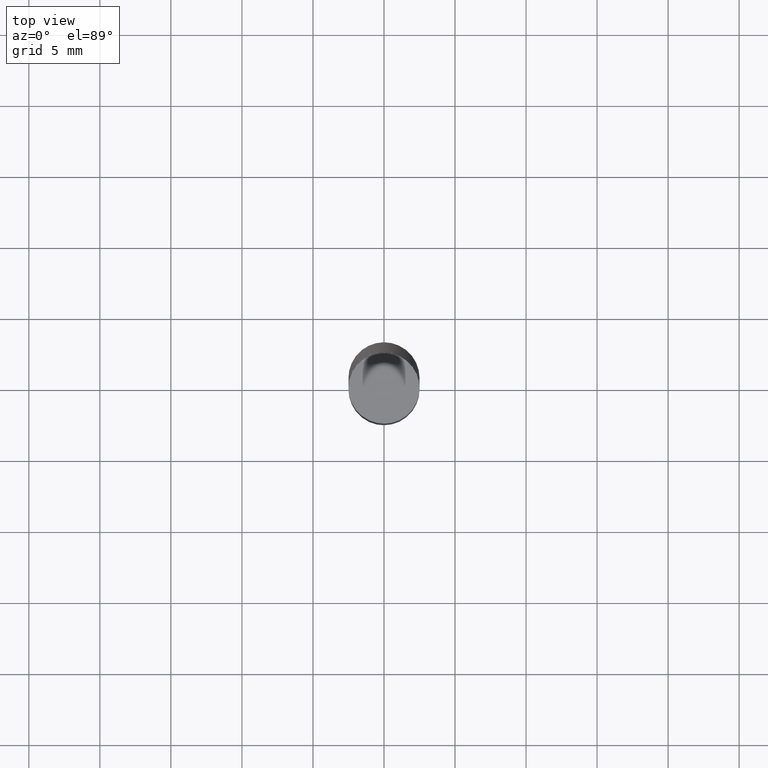
[diagram: clean part render]
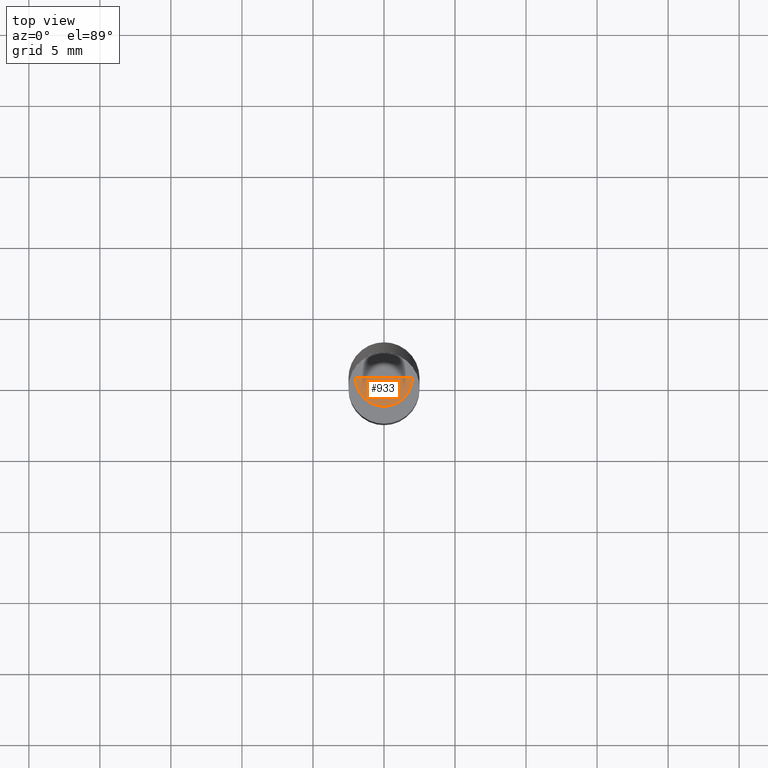
[diagram: same view with one face highlighted and labeled with its STEP entity id]
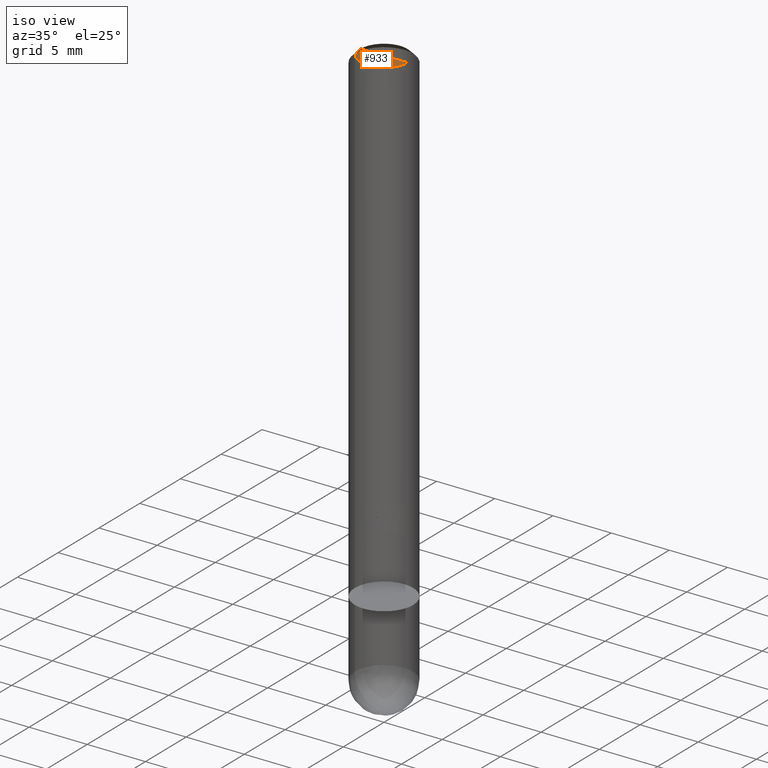
[diagram: same view with one face highlighted and labeled with its STEP entity id]
A machine part, top view. The second image highlights one B-rep face of the part: STEP entity #933.
A second angle (iso view) of the same face is appended — the face is thin or edge-on in the first view.
In plain terms, the highlighted face is a freeform B-spline surface patch.
Its self-contained STEP definition (entity closure, byte-faithful):
#620=CARTESIAN_POINT('',(2.0,0.0,37.0));
#624=CARTESIAN_POINT('',(-2.0,0.0,37.0));
#625=CARTESIAN_POINT('',(0.0,0.0,37.0));
#632=CARTESIAN_POINT('',(-2.0,-2.0,37.0));
#633=CARTESIAN_POINT('',(0.0,-2.0,37.0));
#634=CARTESIAN_POINT('',(2.0,-2.0,37.0));
#918=(
BOUNDED_SURFACE()
B_SPLINE_SURFACE(1,2,(
(#624,#632,#633,#634,#620),
(#625,#625,#625,#625,#625)
), .UNSPECIFIED.,.F.,.F.,.F.)
B_SPLINE_SURFACE_WITH_KNOTS((2,2),(3,2,3),(
0.0,1.0),(
0.0,0.5,1.0), .UNSPECIFIED.)
GEOMETRIC_REPRESENTATION_ITEM()
RATIONAL_B_SPLINE_SURFACE(((1.0,0.707106781187,1.0,0.707106781187,1.0),
(1.0,0.707106781187,1.0,0.707106781187,1.0)
))
REPRESENTATION_ITEM('')
SURFACE()
);
#919=(
BOUNDED_CURVE()
B_SPLINE_CURVE(2,(#620,#634,#633,#632,#624),.UNSPECIFIED.,.F.,.F.)
B_SPLINE_CURVE_WITH_KNOTS((3,2,3),
(0.0,0.5,1.0),.UNSPECIFIED.)
CURVE()
GEOMETRIC_REPRESENTATION_ITEM()
RATIONAL_B_SPLINE_CURVE((1.0,0.707106781187,1.0,0.707106781187,1.0))
REPRESENTATION_ITEM('')
);
#920=(
BOUNDED_CURVE()
B_SPLINE_CURVE(1,(#624,#625),.UNSPECIFIED.,.F.,.F.)
B_SPLINE_CURVE_WITH_KNOTS((2,2),
(0.0,1.0),.UNSPECIFIED.)
CURVE()
GEOMETRIC_REPRESENTATION_ITEM()
RATIONAL_B_SPLINE_CURVE((1.0,1.0))
REPRESENTATION_ITEM('')
);
#921=(
BOUNDED_CURVE()
B_SPLINE_CURVE(1,(#625,#620),.UNSPECIFIED.,.F.,.F.)
B_SPLINE_CURVE_WITH_KNOTS((2,2),
(0.0,1.0),.UNSPECIFIED.)
CURVE()
GEOMETRIC_REPRESENTATION_ITEM()
RATIONAL_B_SPLINE_CURVE((1.0,1.0))
REPRESENTATION_ITEM('')
);
#922=VERTEX_POINT('',#620);
#923=VERTEX_POINT('',#624);
#924=VERTEX_POINT('',#625);
#925=EDGE_CURVE('',#922,#923,#919,.T.);
#926=EDGE_CURVE('',#923,#924,#920,.T.);
#927=EDGE_CURVE('',#924,#922,#921,.T.);
#928=ORIENTED_EDGE('',*,*,#925,.T.);
#929=ORIENTED_EDGE('',*,*,#926,.T.);
#930=ORIENTED_EDGE('',*,*,#927,.T.);
#931=EDGE_LOOP('',(#928,#929,#930));
#932=FACE_OUTER_BOUND('',#931,.T.);
#933=ADVANCED_FACE('',(#932),#918,.T.);